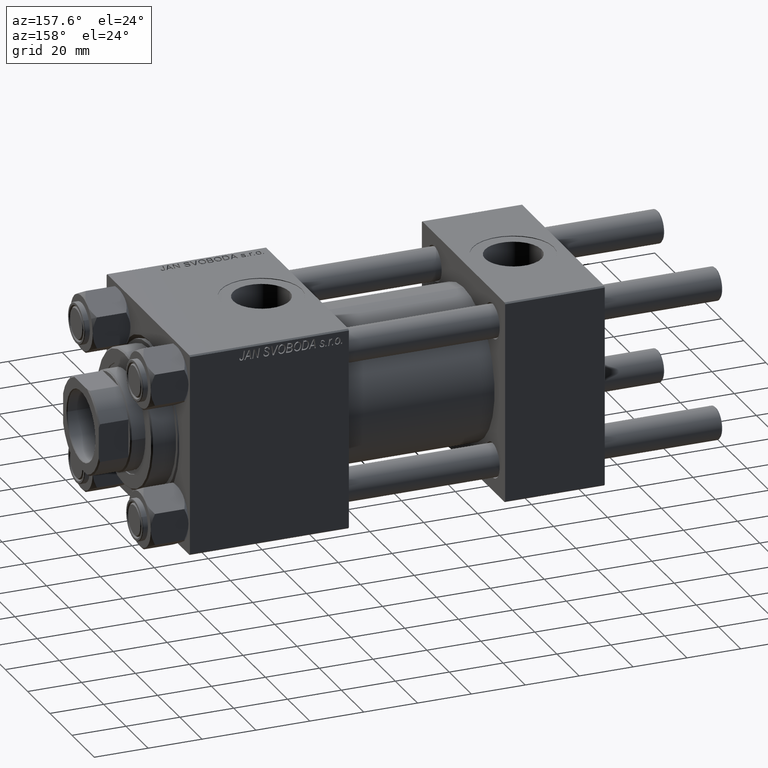
[diagram: clean part render]
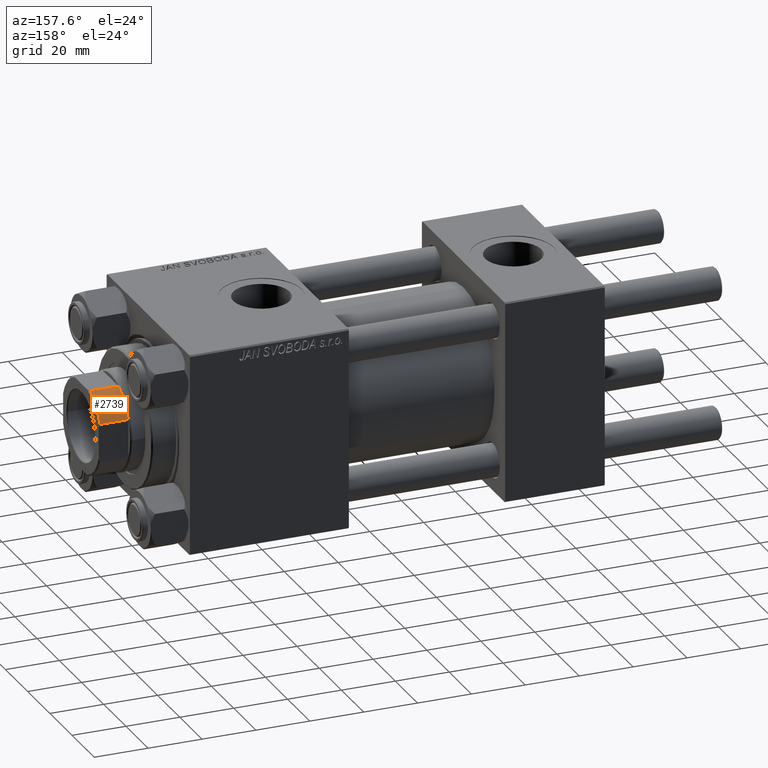
[diagram: same view with one face highlighted and labeled with its STEP entity id]
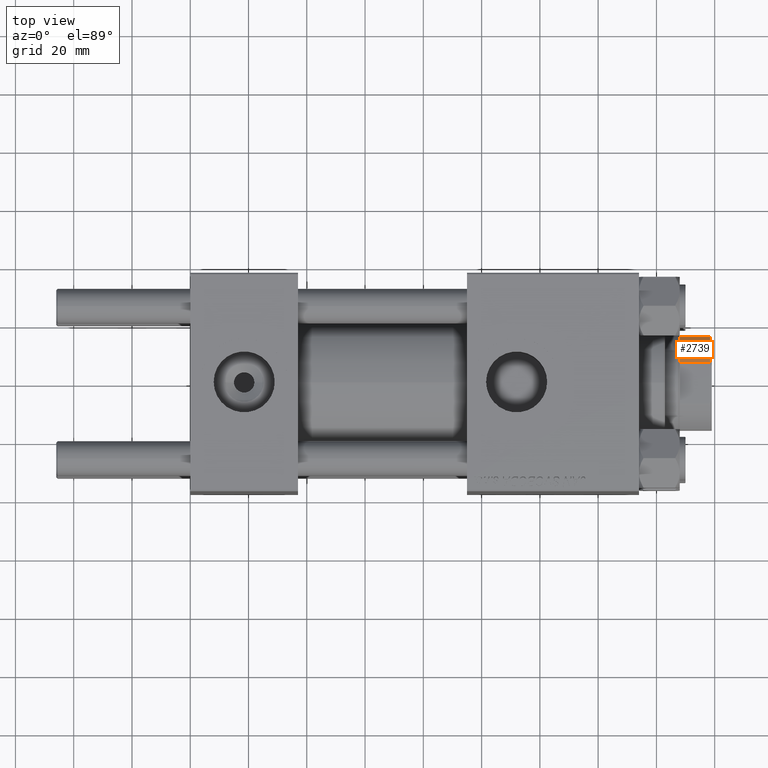
[diagram: same view with one face highlighted and labeled with its STEP entity id]
A machine part, auxiliary view. The second image highlights one B-rep face of the part: STEP entity #2739.
A second angle (top view) of the same face is appended — the face is thin or edge-on in the first view.
In plain terms, the highlighted cylindrical surface (partial cylindrical patch) has radius 17.5 mm, axis along (1, 0, -0).
Its self-contained STEP definition (entity closure, byte-faithful):
#2739 = ADVANCED_FACE ( 'NONE', ( #14573 ), #50177, .T. ) ;
#6350 = VERTEX_POINT ( 'NONE', #9192 ) ;
#7881 = CARTESIAN_POINT ( 'NONE',  ( 0.000000000000000000, 0.000000000000000000, 131.0000000000000000 ) ) ;
#8300 = DIRECTION ( 'NONE',  ( 1.000000000000000000, 0.000000000000000000, 0.000000000000000000 ) ) ;
#9192 = CARTESIAN_POINT ( 'NONE',  ( -16.00000000000000000, -7.088723439378919799, 131.0000000000000284 ) ) ;
#11523 = VECTOR ( 'NONE', #40064, 1000.000000000000000 ) ;
#11560 = DIRECTION ( 'NONE',  ( 0.000000000000000000, 0.000000000000000000, 1.000000000000000000 ) ) ;
#14573 = FACE_OUTER_BOUND ( 'NONE', #41407, .T. ) ;
#14613 = EDGE_CURVE ( 'NONE', #6350, #38825, #36492, .T. ) ;
#16664 = CARTESIAN_POINT ( 'NONE',  ( 0.000000000000000000, 0.000000000000000000, 141.5000000000000284 ) ) ;
#20353 = EDGE_CURVE ( 'NONE', #50765, #40078, #43217, .T. ) ;
#21467 = ORIENTED_EDGE ( 'NONE', *, *, #20353, .T. ) ;
#22143 = ORIENTED_EDGE ( 'NONE', *, *, #35524, .T. ) ;
#23272 = ORIENTED_EDGE ( 'NONE', *, *, #43765, .T. ) ;
#23447 = DIRECTION ( 'NONE',  ( -0.000000000000000000, -0.000000000000000000, 1.000000000000000000 ) ) ;
#23679 = CARTESIAN_POINT ( 'NONE',  ( -16.00000000000000000, -7.088723439378919799, -0.001000000000001000089 ) ) ;
#23932 = DIRECTION ( 'NONE',  ( -0.000000000000000000, -0.000000000000000000, 1.000000000000000000 ) ) ;
#27067 = CIRCLE ( 'NONE', #36273, 17.50000000000000000 ) ;
#27321 = VECTOR ( 'NONE', #23932, 1000.000000000000000 ) ;
#30434 = CARTESIAN_POINT ( 'NONE',  ( -16.00000000000000000, -7.088723439378919799, 141.5000000000000284 ) ) ;
#31688 = AXIS2_PLACEMENT_3D ( 'NONE', #7881, #11560, #39821 ) ;
#35377 = CARTESIAN_POINT ( 'NONE',  ( -7.088723439378915359, -16.00000000000000000, -0.001000000000001000089 ) ) ;
#35524 = EDGE_CURVE ( 'NONE', #40078, #38825, #27067, .T. ) ;
#36273 = AXIS2_PLACEMENT_3D ( 'NONE', #16664, #37091, #8300 ) ;
#36492 = LINE ( 'NONE', #23679, #27321 ) ;
#37091 = DIRECTION ( 'NONE',  ( -0.000000000000000000, -0.000000000000000000, -1.000000000000000000 ) ) ;
#38825 = VERTEX_POINT ( 'NONE', #30434 ) ;
#39173 = DIRECTION ( 'NONE',  ( 1.000000000000000000, 0.000000000000000000, 0.000000000000000000 ) ) ;
#39821 = DIRECTION ( 'NONE',  ( 1.000000000000000000, 0.000000000000000000, 0.000000000000000000 ) ) ;
#40064 = DIRECTION ( 'NONE',  ( -0.000000000000000000, -0.000000000000000000, 1.000000000000000000 ) ) ;
#40078 = VERTEX_POINT ( 'NONE', #46137 ) ;
#41407 = EDGE_LOOP ( 'NONE', ( #21467, #22143, #49950, #23272 ) ) ;
#42082 = CARTESIAN_POINT ( 'NONE',  ( -7.088723439378915359, -16.00000000000000000, 131.0000000000000284 ) ) ;
#42325 = CARTESIAN_POINT ( 'NONE',  ( 0.000000000000000000, 0.000000000000000000, -0.001000000000001000089 ) ) ;
#43010 = AXIS2_PLACEMENT_3D ( 'NONE', #42325, #23447, #39173 ) ;
#43217 = LINE ( 'NONE', #35377, #11523 ) ;
#43389 = CIRCLE ( 'NONE', #31688, 17.50000000000003908 ) ;
#43765 = EDGE_CURVE ( 'NONE', #6350, #50765, #43389, .T. ) ;
#46137 = CARTESIAN_POINT ( 'NONE',  ( -7.088723439378915359, -16.00000000000000000, 141.5000000000000284 ) ) ;
#49950 = ORIENTED_EDGE ( 'NONE', *, *, #14613, .F. ) ;
#50177 = CYLINDRICAL_SURFACE ( 'NONE', #43010, 17.50000000000000000 ) ;
#50765 = VERTEX_POINT ( 'NONE', #42082 ) ;